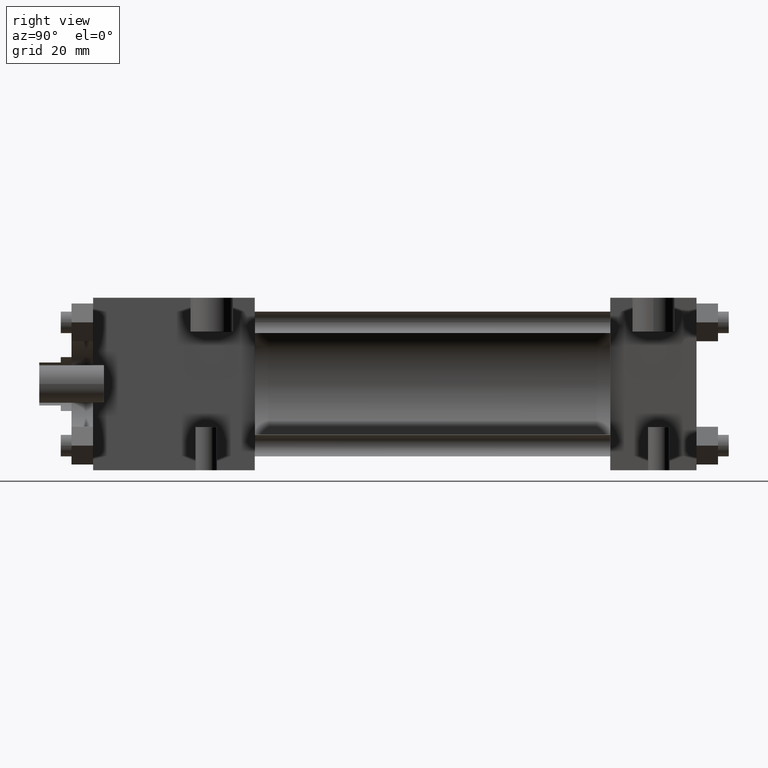
[diagram: clean part render]
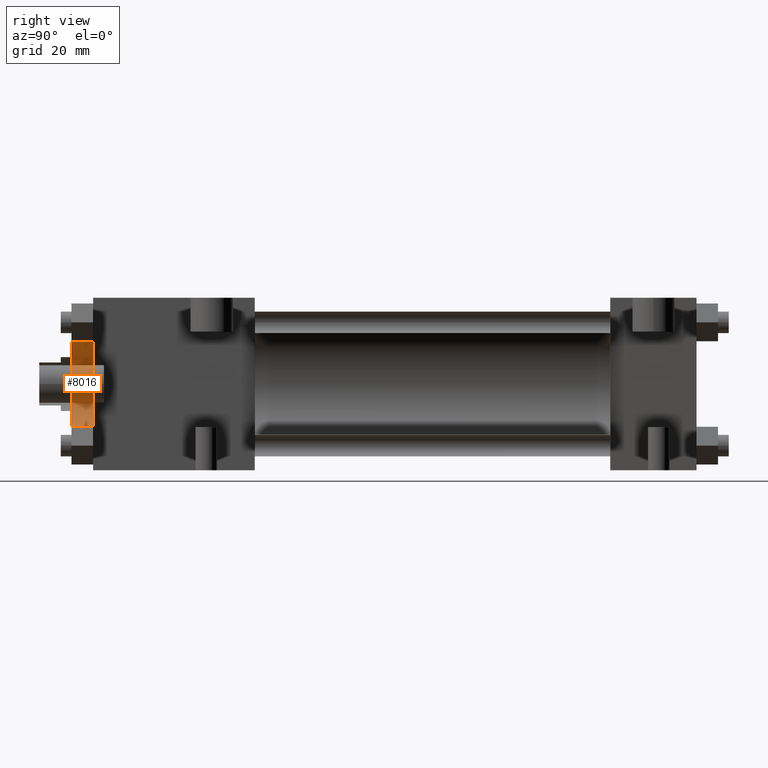
[diagram: same view with one face highlighted and labeled with its STEP entity id]
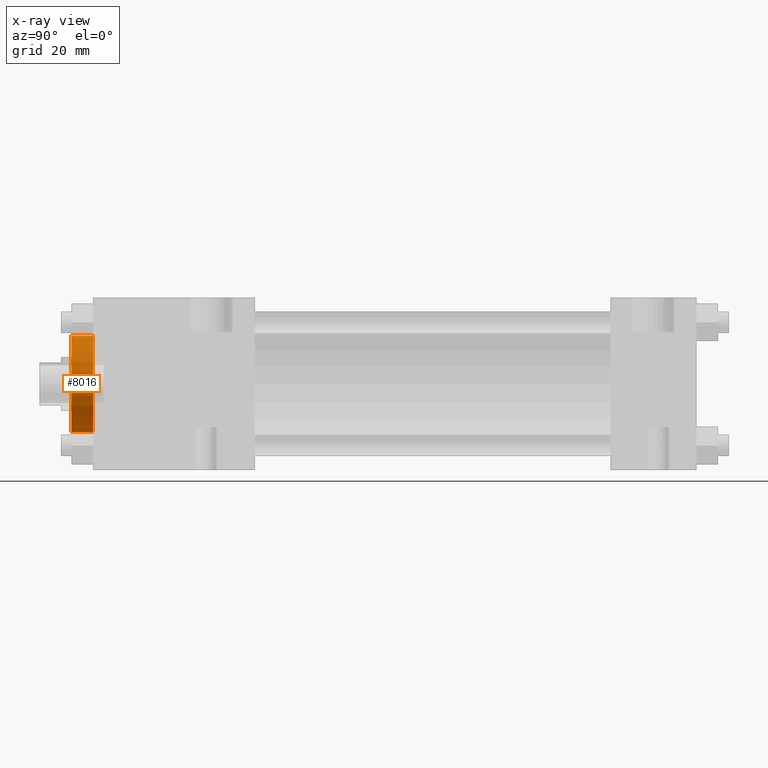
[diagram: x-ray of the same camera — body ghosted, the highlighted face saturated]
A machine part, right view. The second image highlights one B-rep face of the part: STEP entity #8016.
The next image is the same camera in x-ray: the body ghosted, the highlighted face saturated — about 0% of this face is hidden behind the body in this view.
In plain terms, the highlighted cylindrical surface (bore or boss wall) has radius 14.2875 mm, axis along (0, -1, 0).
Its self-contained STEP definition (entity closure, byte-faithful):
#405=EDGE_CURVE('',#411,#411,#406,.T.);
#406=CIRCLE('',#407,1.428750000E+001);
#407=AXIS2_PLACEMENT_3D('',#408,#409,#410);
#408=CARTESIAN_POINT('',(0.000000000E+000,9.525000000E+000,0.000000000E+000));
#409=DIRECTION('',(0.0E+000,1.0E+000,0.0E+000));
#410=DIRECTION('',(1.0E+000,0.0E+000,0.0E+000));
#411=VERTEX_POINT('',#412);
#412=CARTESIAN_POINT('',(1.428750000E+001,9.525000000E+000,0.000000000E+000));
#419=FACE_OUTER_BOUND('',#421,.T.);
#420=FACE_BOUND('',#422,.T.);
#421=EDGE_LOOP('',(#423));
#422=EDGE_LOOP('',(#432));
#423=ORIENTED_EDGE('',*,*,#424,.F.);
#424=EDGE_CURVE('',#430,#430,#425,.T.);
#425=CIRCLE('',#426,1.428750000E+001);
#426=AXIS2_PLACEMENT_3D('',#427,#428,#429);
#427=CARTESIAN_POINT('',(0.000000000E+000,1.587500000E+001,0.000000000E+000));
#428=DIRECTION('',(0.0E+000,1.0E+000,0.0E+000));
#429=DIRECTION('',(1.0E+000,0.0E+000,0.0E+000));
#430=VERTEX_POINT('',#431);
#431=CARTESIAN_POINT('',(1.428750000E+001,1.587500000E+001,0.000000000E+000));
#432=ORIENTED_EDGE('',*,*,#405,.T.);
#433=CYLINDRICAL_SURFACE('',#434,1.428750000E+001);
#434=AXIS2_PLACEMENT_3D('',#435,#436,#437);
#435=CARTESIAN_POINT('',(0.000000000E+000,1.587500000E+001,0.000000000E+000));
#436=DIRECTION('',(0.0E+000,-1.0E+000,0.0E+000));
#437=DIRECTION('',(0.0E+000,0.0E+000,-1.0E+000));
#8016=ADVANCED_FACE('',(#419,#420),#433,.T.);